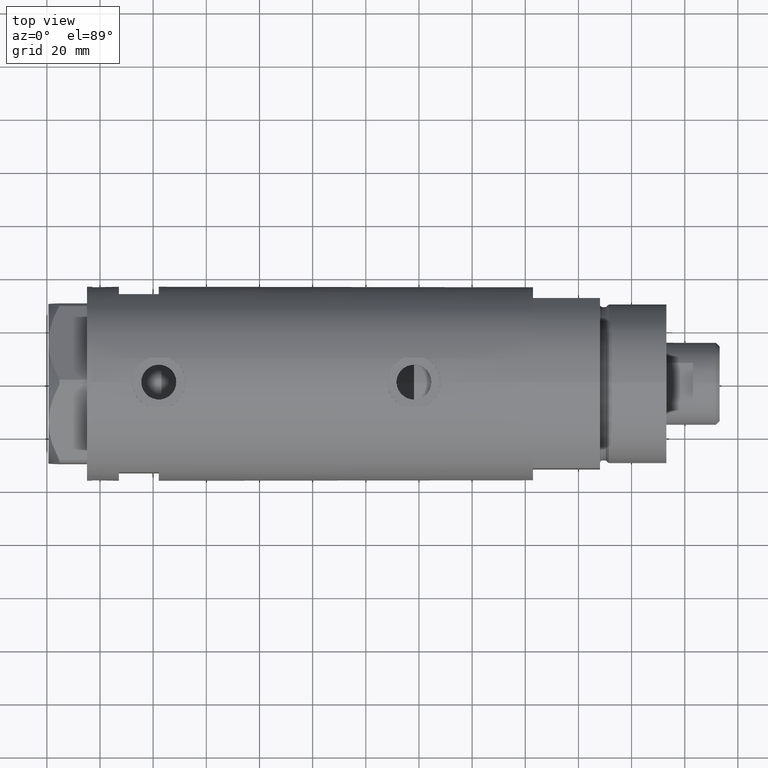
[diagram: clean part render]
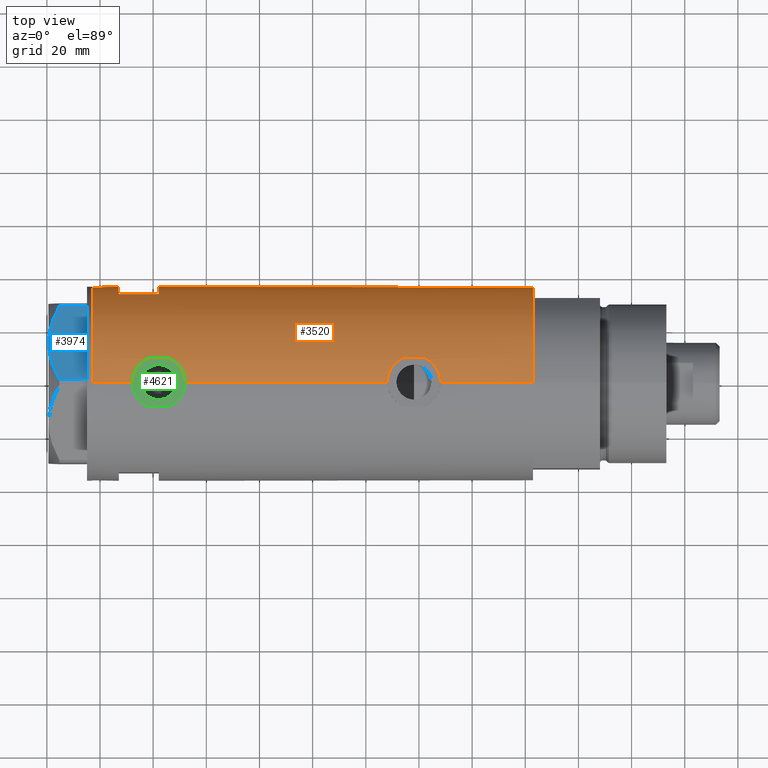
[diagram: same view with three faces highlighted in distinct colors, each labeled with its STEP entity id]
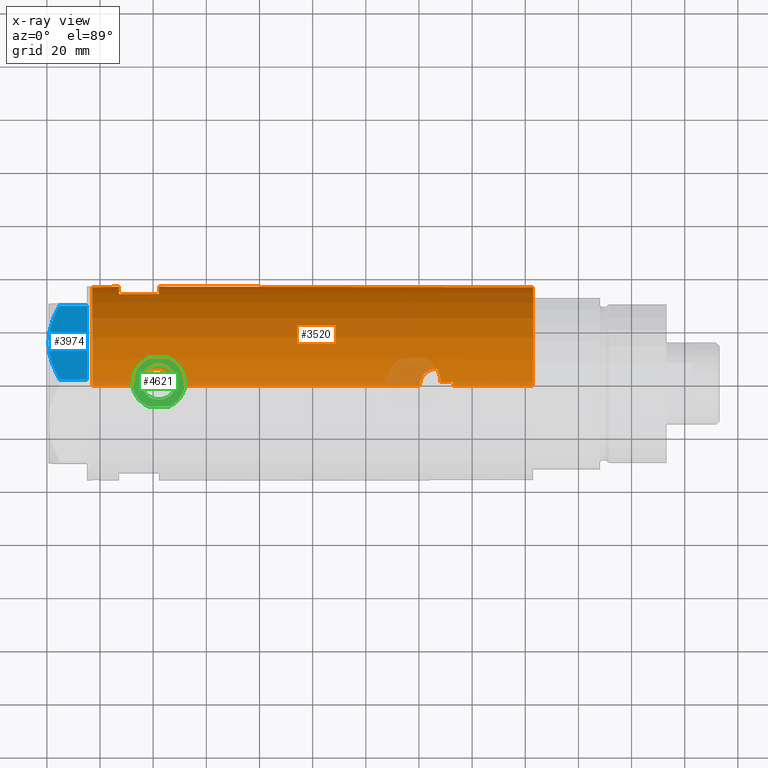
[diagram: x-ray of the same camera — body ghosted, the three highlighted faces saturated]
A machine part, top view with three faces highlighted in distinct colors.
The next image is the same camera in x-ray (body ghosted, the three faces saturated) — at least one of them is partly hidden behind the body in this view.
Their STEP definitions:

[orange] entity #3520 — the highlighted cylindrical surface (partial cylindrical patch) has radius 36.5 mm, axis along (-1, -0, 0).
#1 = CARTESIAN_POINT ( 'NONE',  ( 35.29999999999999716, 9.282241108697837362, -41.82021504754764862 ) ) ;
#7 = VERTEX_POINT ( 'NONE', #2099 ) ;
#8 = CARTESIAN_POINT ( 'NONE',  ( 36.50000000000000000, 4.344611676915099379E-19, -28.10000000000000142 ) ) ;
#24 = VECTOR ( 'NONE', #3632, 1000.000000000000000 ) ;
#33 = DIRECTION ( 'NONE',  ( 0.000000000000000000, 0.000000000000000000, 1.000000000000000000 ) ) ;
#34 = CARTESIAN_POINT ( 'NONE',  ( -36.50000000000001421, 0.4083036190459299886, 52.65000000000002700 ) ) ;
#40 = ORIENTED_EDGE ( 'NONE', *, *, #1723, .T. ) ;
#58 = CARTESIAN_POINT ( 'NONE',  ( 36.29611582693038940, 3.878758190381168092, -28.86955010900449992 ) ) ;
#80 = CARTESIAN_POINT ( 'NONE',  ( 36.40008489419980720, 2.709263960908029123, -28.47081895403607632 ) ) ;
#141 = CARTESIAN_POINT ( 'NONE',  ( 36.49999999999999289, 1.005842003469123558, 47.89999999999999147 ) ) ;
#185 = CARTESIAN_POINT ( 'NONE',  ( -36.01524716445113228, 5.931039972055507370, 56.88669268135342350 ) ) ;
#187 = EDGE_CURVE ( 'NONE', #584, #7, #2796, .T. ) ;
#205 = CARTESIAN_POINT ( 'NONE',  ( 14.49137674618942739, 33.50000000000000000, 72.89999999999999147 ) ) ;
#213 = VERTEX_POINT ( 'NONE', #449 ) ;
#226 = LINE ( 'NONE', #1335, #3022 ) ;
#231 = CARTESIAN_POINT ( 'NONE',  ( 36.34264078466109993, 3.418717136061407480, 67.31049034040752588 ) ) ;
#233 = CARTESIAN_POINT ( 'NONE',  ( -36.11199073531170001, 5.309184630646985426, 62.20412840766834250 ) ) ;
#247 = CARTESIAN_POINT ( 'NONE',  ( -35.96088929326157313, 6.250155299092693184, -47.00610494763245129 ) ) ;
#248 = CARTESIAN_POINT ( 'NONE',  ( 35.52347503888660185, 8.410566959990466884, -32.60046032740658006 ) ) ;
#276 = CARTESIAN_POINT ( 'NONE',  ( 36.49999999999999289, 1.005842003469123558, -48.09999999999999432 ) ) ;
#294 = ORIENTED_EDGE ( 'NONE', *, *, #4277, .F. ) ;
#310 = CARTESIAN_POINT ( 'NONE',  ( 35.72794581931695035, 7.469526493268208611, -31.44660203271737586 ) ) ;
#326 = EDGE_CURVE ( 'NONE', #1058, #4700, #1194, .T. ) ;
#345 = CARTESIAN_POINT ( 'NONE',  ( 35.34894515018993388, 9.096104616284849342, 53.71535916533458987 ) ) ;
#354 = CARTESIAN_POINT ( 'NONE',  ( 35.93456089024233790, 6.410413305453381838, -45.79085963204146026 ) ) ;
#362 = CARTESIAN_POINT ( 'NONE',  ( 36.00145998247696610, 6.026272765084661920, -30.10449611787613478 ) ) ;
#377 = CARTESIAN_POINT ( 'NONE',  ( 35.40502660484482789, 8.876998817796915020, -42.73098724071236632 ) ) ;
#390 = CARTESIAN_POINT ( 'NONE',  ( 36.18948008481302026, 4.772042575486204363, 49.09822368756843503 ) ) ;
#437 = CARTESIAN_POINT ( 'NONE',  ( 35.93435287561198521, 6.411571491280768420, -30.41011355077158029 ) ) ;
#449 = CARTESIAN_POINT ( 'NONE',  ( -36.50000000000000000, 4.469960816887838430E-15, -82.90000000000000568 ) ) ;
#458 = DIRECTION ( 'NONE',  ( -0.000000000000000000, -0.000000000000000000, -1.000000000000000000 ) ) ;
#500 = CARTESIAN_POINT ( 'NONE',  ( 36.50000000000000000, 0.000000000000000000, 47.89999999999999858 ) ) ;
#509 = CARTESIAN_POINT ( 'NONE',  ( 36.48988646280793802, 0.9921857666168150125, 67.86328115134426753 ) ) ;
#516 = ORIENTED_EDGE ( 'NONE', *, *, #2064, .F. ) ;
#523 = LINE ( 'NONE', #2018, #1889 ) ;
#530 = CARTESIAN_POINT ( 'NONE',  ( 36.48988646280794512, 0.9921857666168116818, -28.13671884865573602 ) ) ;
#543 = LINE ( 'NONE', #4229, #4044 ) ;
#550 = CARTESIAN_POINT ( 'NONE',  ( -36.03936508729894683, 5.782103729777503531, 61.29870532603795397 ) ) ;
#575 = AXIS2_PLACEMENT_3D ( 'NONE', #2249, #458, #2698 ) ;
#581 = CARTESIAN_POINT ( 'NONE',  ( -35.99700617875953412, 6.038972911021577517, 60.52333185798319448 ) ) ;
#584 = VERTEX_POINT ( 'NONE', #2455 ) ;
#601 = CARTESIAN_POINT ( 'NONE',  ( 35.72794581931695745, 7.469526493268204170, 64.55339796728263480 ) ) ;
#605 = EDGE_CURVE ( 'NONE', #213, #3076, #523, .T. ) ;
#606 = EDGE_CURVE ( 'NONE', #1258, #3686, #1018, .T. ) ;
#617 = VERTEX_POINT ( 'NONE', #3473 ) ;
#628 = CARTESIAN_POINT ( 'NONE',  ( -36.19624103943463211, 4.708090268046854376, -42.46938778553861482 ) ) ;
#635 = CARTESIAN_POINT ( 'NONE',  ( 36.36225053217121683, 3.177096004138048713, 48.41483975524019456 ) ) ;
#670 = CARTESIAN_POINT ( 'NONE',  ( -35.96793274302673638, 6.210029014836893069, -45.78305762320682248 ) ) ;
#674 = CARTESIAN_POINT ( 'NONE',  ( 36.50000000000000000, 0.000000000000000000, -82.90000000000000568 ) ) ;
#679 = ORIENTED_EDGE ( 'NONE', *, *, #605, .T. ) ;
#681 = CARTESIAN_POINT ( 'NONE',  ( -36.11206433103227909, 5.308658295084034862, 55.59515351959023377 ) ) ;
#733 = CARTESIAN_POINT ( 'NONE',  ( -36.16083474549355259, 4.969527450313370842, 55.08794680877250016 ) ) ;
#776 = CARTESIAN_POINT ( 'NONE',  ( 36.29420020483470921, 3.877527130731371230, 48.67901025599706344 ) ) ;
#788 = FACE_OUTER_BOUND ( 'NONE', #2843, .T. ) ;
#804 = VECTOR ( 'NONE', #2118, 1000.000000000000000 ) ;
#819 = CARTESIAN_POINT ( 'NONE',  ( 0.000000000000000000, 0.000000000000000000, 82.90000000000000568 ) ) ;
#864 = ORIENTED_EDGE ( 'NONE', *, *, #2869, .T. ) ;
#874 = AXIS2_PLACEMENT_3D ( 'NONE', #4142, #3073, #908 ) ;
#901 = ORIENTED_EDGE ( 'NONE', *, *, #2983, .F. ) ;
#908 = DIRECTION ( 'NONE',  ( 0.000000000000000000, 1.000000000000000000, -4.562560375171875891E-15 ) ) ;
#926 = CARTESIAN_POINT ( 'NONE',  ( 35.39804469700246869, 8.909380959553008239, 62.55053164482843187 ) ) ;
#931 = CARTESIAN_POINT ( 'NONE',  ( -36.46462099658055678, 1.618684470865503489, 64.94024397024845996 ) ) ;
#939 = CARTESIAN_POINT ( 'NONE',  ( -36.16083474549354548, 4.969527450313382388, -50.41205319122751405 ) ) ;
#952 = CARTESIAN_POINT ( 'NONE',  ( -36.49297130294515057, 0.8204796224394267368, 65.10931692217734224 ) ) ;
#979 = CARTESIAN_POINT ( 'NONE',  ( 36.18937351723702989, 4.773052864917642246, 66.70135993118843487 ) ) ;
#1008 = VERTEX_POINT ( 'NONE', #205 ) ;
#1014 = CARTESIAN_POINT ( 'NONE',  ( -36.47290054070997911, 1.420408912806971014, 64.98986981660013384 ) ) ;
#1016 = EDGE_CURVE ( 'NONE', #1429, #4700, #226, .T. ) ;
#1018 = LINE ( 'NONE', #3927, #804 ) ;
#1032 = CARTESIAN_POINT ( 'NONE',  ( 35.79715675463676661, 7.130463293899343746, -31.08444415894004109 ) ) ;
#1037 = CARTESIAN_POINT ( 'NONE',  ( -36.11199073531169290, 5.309184630646996972, -43.29587159233165039 ) ) ;
#1058 = VERTEX_POINT ( 'NONE', #4587 ) ;
#1059 = CARTESIAN_POINT ( 'NONE',  ( -36.50000000000000711, 0.4083036190459276016, -52.85000000000001563 ) ) ;
#1081 = EDGE_CURVE ( 'NONE', #617, #2923, #1478, .T. ) ;
#1086 = ORIENTED_EDGE ( 'NONE', *, *, #606, .F. ) ;
#1088 = CARTESIAN_POINT ( 'NONE',  ( -36.39522946636254375, 2.769519034821240844, 53.29336076268729272 ) ) ;
#1097 = EDGE_CURVE ( 'NONE', #3580, #1058, #4371, .T. ) ;
#1115 = CARTESIAN_POINT ( 'NONE',  ( 36.34070350304396868, 3.414301401755547083, -47.50236217375907444 ) ) ;
#1118 = CARTESIAN_POINT ( 'NONE',  ( -14.49137674618942739, 33.50000000000000000, 72.89999999999999147 ) ) ;
#1122 = CARTESIAN_POINT ( 'NONE',  ( -36.06690560274405044, 5.606949625760679901, -49.36885923958933375 ) ) ;
#1146 = CARTESIAN_POINT ( 'NONE',  ( 35.52737867031126484, 8.373910777960910323, -43.58860356717065798 ) ) ;
#1194 = B_SPLINE_CURVE_WITH_KNOTS ( 'NONE', 3,
 ( #3230, #276, #2083, #4684, #1115, #4653, #2572, #3680, #3699, #4048, #354, #3317, #3960, #2816, #1146, #377, #3535, #1 ),
 .UNSPECIFIED., .F., .F.,
 ( 4, 2, 2, 2, 2, 2, 2, 2, 4 ),
 ( 6.505213034913026604E-19, 0.002973648994175712851, 0.003717061242719640196, 0.004460473491263567541, 0.005947297988351423099, 0.007434122485439277790, 0.008920946982527131613, 0.01040777147961498630, 0.01189459597670284099 ),
 .UNSPECIFIED. ) ;
#1213 = CARTESIAN_POINT ( 'NONE',  ( -36.01524716445113938, 5.931039972055519804, -48.61330731864658361 ) ) ;
#1214 = CARTESIAN_POINT ( 'NONE',  ( 36.41717583764485511, 2.469534783404757405, -28.40651988824328456 ) ) ;
#1222 = EDGE_CURVE ( 'NONE', #3233, #2046, #2630, .T. ) ;
#1245 = CARTESIAN_POINT ( 'NONE',  ( -36.44628644024910358, 2.015372769639941275, 52.96971871986416858 ) ) ;
#1258 = VERTEX_POINT ( 'NONE', #8 ) ;
#1278 = CARTESIAN_POINT ( 'NONE',  ( 36.50000000000000000, 0.4961820988516186803, -28.10000000000000142 ) ) ;
#1279 = AXIS2_PLACEMENT_3D ( 'NONE', #4114, #3338, #2625 ) ;
#1299 = CARTESIAN_POINT ( 'NONE',  ( -36.30200038006935159, 3.811959488093736415, 63.86972104836005570 ) ) ;
#1335 = CARTESIAN_POINT ( 'NONE',  ( 35.29999999999999716, 9.282241108697837362, -82.90000000000000568 ) ) ;
#1365 = VECTOR ( 'NONE', #4197, 1000.000000000000000 ) ;
#1372 = DIRECTION ( 'NONE',  ( 0.000000000000000000, 0.000000000000000000, 1.000000000000000000 ) ) ;
#1375 = CARTESIAN_POINT ( 'NONE',  ( 35.40502660484482789, 8.876998817796915020, 53.26901275928763368 ) ) ;
#1378 = ORIENTED_EDGE ( 'NONE', *, *, #3848, .T. ) ;
#1397 = CARTESIAN_POINT ( 'NONE',  ( -36.26643311080165688, 4.132772529026629726, 63.60619405269881099 ) ) ;
#1407 = EDGE_LOOP ( 'NONE', ( #3442, #3275, #901, #294 ) ) ;
#1416 = DIRECTION ( 'NONE',  ( 1.000000000000000000, 0.000000000000000000, 0.000000000000000000 ) ) ;
#1420 = DIRECTION ( 'NONE',  ( 0.000000000000000000, 0.000000000000000000, 1.000000000000000000 ) ) ;
#1429 = VERTEX_POINT ( 'NONE', #3933 ) ;
#1446 = B_SPLINE_CURVE_WITH_KNOTS ( 'NONE', 3,
 ( #3228, #4344, #248, #4724, #310, #1032, #4493, #437, #362, #1500, #1913, #58, #1935, #80, #1214, #1974, #1721, #530, #1278, #3875 ),
 .UNSPECIFIED., .F., .F.,
 ( 4, 2, 2, 2, 2, 2, 2, 2, 2, 4 ),
 ( 0.000000000000000000, 0.002977391289382820029, 0.003721739111728531758, 0.004466086934074251294, 0.005954782578765692100, 0.007443478223457132038, 0.008932173868148571977, 0.009676521690494288910, 0.01042086951284000758, 0.01190956515753144491 ),
 .UNSPECIFIED. ) ;
#1464 = CARTESIAN_POINT ( 'NONE',  ( -35.96094343308264740, 6.249843792257639308, -46.18912889655430121 ) ) ;
#1478 = LINE ( 'NONE', #674, #24 ) ;
#1490 = ORIENTED_EDGE ( 'NONE', *, *, #3045, .F. ) ;
#1500 = CARTESIAN_POINT ( 'NONE',  ( 36.12877841835538106, 5.208882251161926824, -29.54946835209708667 ) ) ;
#1509 = ORIENTED_EDGE ( 'NONE', *, *, #1222, .T. ) ;
#1528 = CARTESIAN_POINT ( 'NONE',  ( 36.44688397185922213, 1.983417953489136965, 67.70449957648254724 ) ) ;
#1544 = CARTESIAN_POINT ( 'NONE',  ( -35.99530513653993324, 6.049346314076213815, -48.22332583035833409 ) ) ;
#1549 = CARTESIAN_POINT ( 'NONE',  ( 36.49999999999999289, 0.4961820988516169595, 67.89999999999997726 ) ) ;
#1555 = CARTESIAN_POINT ( 'NONE',  ( -36.46462099658057099, 1.618684470865508596, -40.55975602975155425 ) ) ;
#1574 = CARTESIAN_POINT ( 'NONE',  ( -36.06675137892952421, 5.607935153446982568, -43.83318173991241906 ) ) ;
#1637 = CARTESIAN_POINT ( 'NONE',  ( 36.45853166336078743, 1.985123042546143690, 48.04837329582261418 ) ) ;
#1641 = CARTESIAN_POINT ( 'NONE',  ( -36.50000000000000000, 4.469960493369248271E-15, 52.65000000000001279 ) ) ;
#1648 = DIRECTION ( 'NONE',  ( -0.000000000000000000, -0.000000000000000000, -1.000000000000000000 ) ) ;
#1678 = CARTESIAN_POINT ( 'NONE',  ( 35.79715675463678082, 7.130463293899336641, 64.91555584105995536 ) ) ;
#1680 = CARTESIAN_POINT ( 'NONE',  ( -36.39638105034455151, 2.774378062517180332, -40.98456667300897749 ) ) ;
#1686 = CARTESIAN_POINT ( 'NONE',  ( -36.06690560274405044, 5.606949625760669242, 56.13114076041065914 ) ) ;
#1721 = CARTESIAN_POINT ( 'NONE',  ( 36.45954139109321090, 1.735915671103594571, -28.24863218852990698 ) ) ;
#1723 = EDGE_CURVE ( 'NONE', #3983, #2407, #3930, .T. ) ;
#1731 = LINE ( 'NONE', #4274, #1365 ) ;
#1734 = CARTESIAN_POINT ( 'NONE',  ( 36.12877841835537396, 5.208882251161923271, 66.45053164790293465 ) ) ;
#1757 = DIRECTION ( 'NONE',  ( 0.000000000000000000, 0.000000000000000000, 1.000000000000000000 ) ) ;
#1788 = CARTESIAN_POINT ( 'NONE',  ( -36.30181775639987762, 3.813582387016778430, 53.93163942425564983 ) ) ;
#1792 = ORIENTED_EDGE ( 'NONE', *, *, #1016, .T. ) ;
#1800 = CARTESIAN_POINT ( 'NONE',  ( 36.50000000000000000, 0.000000000000000000, -82.90000000000000568 ) ) ;
#1804 = CARTESIAN_POINT ( 'NONE',  ( -36.50000000000000000, 4.469960493366092827E-15, -52.85000000000000853 ) ) ;
#1807 = CARTESIAN_POINT ( 'NONE',  ( -36.35033317675380715, 3.306376218664574207, 53.59229280583950583 ) ) ;
#1830 = B_SPLINE_CURVE_WITH_KNOTS ( 'NONE', 3,
 ( #500, #141, #1637, #635, #4784, #776, #2456, #390, #4086, #3669, #2120, #4314, #3568, #1891, #4693, #1375, #345, #1853 ),
 .UNSPECIFIED., .F., .F.,
 ( 4, 2, 2, 2, 2, 2, 2, 2, 4 ),
 ( 6.505213034913026604E-19, 0.002973648994175712851, 0.003717061242719640196, 0.004460473491263567541, 0.005947297988351423099, 0.007434122485439277790, 0.008920946982527131613, 0.01040777147961498630, 0.01189459597670284099 ),
 .UNSPECIFIED. ) ;
#1849 = CARTESIAN_POINT ( 'NONE',  ( -36.05296344941215381, 5.695624845616832133, -49.18154856536755659 ) ) ;
#1853 = CARTESIAN_POINT ( 'NONE',  ( 35.29999999999999716, 9.282241108697837362, 54.17978495245235138 ) ) ;
#1873 = CARTESIAN_POINT ( 'NONE',  ( -36.19597718496778072, 4.710322426433902088, 54.77148389237986237 ) ) ;
#1886 = CARTESIAN_POINT ( 'NONE',  ( 35.29999999999999716, 9.282241108697837362, 54.17978495245235138 ) ) ;
#1889 = VECTOR ( 'NONE', #1372, 1000.000000000000000 ) ;
#1891 = CARTESIAN_POINT ( 'NONE',  ( 35.59366931936805400, 8.089554397885871495, 52.00072680912185774 ) ) ;
#1901 = AXIS2_PLACEMENT_3D ( 'NONE', #2563, #2588, #2213 ) ;
#1913 = CARTESIAN_POINT ( 'NONE',  ( 36.18937351723702989, 4.773052864917642246, -29.29864006881156513 ) ) ;
#1935 = CARTESIAN_POINT ( 'NONE',  ( 36.34264078466111414, 3.418717136061404815, -28.68950965959248123 ) ) ;
#1974 = CARTESIAN_POINT ( 'NONE',  ( 36.44688397185921502, 1.983417953489134744, -28.29550042351748829 ) ) ;
#1979 = CARTESIAN_POINT ( 'NONE',  ( -35.98846897517729815, 6.089479646546508640, -45.17765108453480849 ) ) ;
#2001 = CARTESIAN_POINT ( 'NONE',  ( -36.40902375114222167, 2.582415566883932811, -52.29521691469690836 ) ) ;
#2006 = EDGE_CURVE ( 'NONE', #7, #4607, #1731, .T. ) ;
#2018 = CARTESIAN_POINT ( 'NONE',  ( -36.50000000000000000, 4.469960816887838430E-15, -82.90000000000000568 ) ) ;
#2039 = CARTESIAN_POINT ( 'NONE',  ( -35.96793274302675769, 6.210029014836877970, 59.71694237679319173 ) ) ;
#2040 = VECTOR ( 'NONE', #2209, 1000.000000000000000 ) ;
#2046 = VERTEX_POINT ( 'NONE', #4300 ) ;
#2064 = EDGE_CURVE ( 'NONE', #1429, #1258, #1446, .T. ) ;
#2083 = CARTESIAN_POINT ( 'NONE',  ( 36.45853166336078743, 1.985123042546143690, -47.95162670417735740 ) ) ;
#2087 = CARTESIAN_POINT ( 'NONE',  ( 36.29611582693039651, 3.878758190381167648, 67.13044989099549298 ) ) ;
#2090 = CARTESIAN_POINT ( 'NONE',  ( -36.39638105034455862, 2.774378062517167454, 64.51543332699104383 ) ) ;
#2099 = CARTESIAN_POINT ( 'NONE',  ( -14.49137674618942917, 33.50000000000000000, 57.89999999999999147 ) ) ;
#2118 = DIRECTION ( 'NONE',  ( 0.000000000000000000, 0.000000000000000000, 1.000000000000000000 ) ) ;
#2120 = CARTESIAN_POINT ( 'NONE',  ( 35.93456089024233790, 6.410413305453381838, 50.20914036795854685 ) ) ;
#2133 = CIRCLE ( 'NONE', #2726, 36.50000000000000000 ) ;
#2136 = CARTESIAN_POINT ( 'NONE',  ( -36.49292802938586533, 0.8230716655928878023, 52.69093061246486798 ) ) ;
#2165 = CARTESIAN_POINT ( 'NONE',  ( -36.36688032967139605, 3.133094607697487266, -41.17663567362491506 ) ) ;
#2172 = CARTESIAN_POINT ( 'NONE',  ( -36.36587679577596077, 3.131448301962862057, 53.48717534426381803 ) ) ;
#2209 = DIRECTION ( 'NONE',  ( -0.000000000000000000, -0.000000000000000000, -1.000000000000000000 ) ) ;
#2212 = VECTOR ( 'NONE', #1420, 1000.000000000000000 ) ;
#2213 = DIRECTION ( 'NONE',  ( 1.000000000000000000, 0.000000000000000000, 0.000000000000000000 ) ) ;
#2234 = CARTESIAN_POINT ( 'NONE',  ( 36.41717583764487642, 2.469534783404759182, 67.59348011175673321 ) ) ;
#2249 = CARTESIAN_POINT ( 'NONE',  ( 0.000000000000000000, 0.000000000000000000, 72.89999999999999147 ) ) ;
#2263 = FACE_BOUND ( 'NONE', #1407, .T. ) ;
#2303 = DIRECTION ( 'NONE',  ( 0.000000000000000000, 0.000000000000000000, 1.000000000000000000 ) ) ;
#2364 = CARTESIAN_POINT ( 'NONE',  ( 35.29999999999999716, 9.282241108697837362, 61.62021504754764578 ) ) ;
#2395 = CARTESIAN_POINT ( 'NONE',  ( 35.93435287561198521, 6.411571491280764867, 65.58988644922843037 ) ) ;
#2400 = CARTESIAN_POINT ( 'NONE',  ( -36.43371204571226230, 2.206934156026284732, 64.75097281670994676 ) ) ;
#2407 = VERTEX_POINT ( 'NONE', #1641 ) ;
#2454 = CARTESIAN_POINT ( 'NONE',  ( -36.36688032967139605, 3.133094607697478828, 64.32336432637509915 ) ) ;
#2455 = CARTESIAN_POINT ( 'NONE',  ( 14.49137674618942917, 33.50000000000000000, 57.89999999999999147 ) ) ;
#2456 = CARTESIAN_POINT ( 'NONE',  ( 36.26917563968162739, 4.104523505324179311, 48.77784011632527239 ) ) ;
#2461 = CARTESIAN_POINT ( 'NONE',  ( -36.49297130294515057, 0.8204796224394304005, -40.39068307782265066 ) ) ;
#2542 = CARTESIAN_POINT ( 'NONE',  ( -36.46598788992681506, 1.625721481788706013, -52.64872046713838216 ) ) ;
#2545 = CARTESIAN_POINT ( 'NONE',  ( -36.40902375114222167, 2.582415566883931479, 53.20478308530312006 ) ) ;
#2563 = CARTESIAN_POINT ( 'NONE',  ( 0.000000000000000000, 0.000000000000000000, -82.90000000000000568 ) ) ;
#2572 = CARTESIAN_POINT ( 'NONE',  ( 36.26917563968162739, 4.104523505324179311, -47.22215988367477024 ) ) ;
#2588 = DIRECTION ( 'NONE',  ( 0.000000000000000000, 0.000000000000000000, 1.000000000000000000 ) ) ;
#2617 = CARTESIAN_POINT ( 'NONE',  ( -36.26695135241003953, 4.128455078791303023, 54.18962408355263705 ) ) ;
#2625 = DIRECTION ( 'NONE',  ( 1.000000000000000000, 0.000000000000000000, 0.000000000000000000 ) ) ;
#2630 = LINE ( 'NONE', #4126, #3414 ) ;
#2661 = CARTESIAN_POINT ( 'NONE',  ( -36.44504802628535600, 2.011764947064739406, -40.67906355091481174 ) ) ;
#2698 = DIRECTION ( 'NONE',  ( 1.000000000000000000, 1.776356839400250465E-15, 0.000000000000000000 ) ) ;
#2702 = EDGE_CURVE ( 'NONE', #3233, #2407, #3074, .T. ) ;
#2723 = CARTESIAN_POINT ( 'NONE',  ( 35.69321149401850590, 7.633476302278302761, 64.36463072166442601 ) ) ;
#2726 = AXIS2_PLACEMENT_3D ( 'NONE', #819, #33, #1416 ) ;
#2751 = CARTESIAN_POINT ( 'NONE',  ( -36.16126303108062956, 4.966520032693292563, 62.71641227745282521 ) ) ;
#2773 = CARTESIAN_POINT ( 'NONE',  ( 36.00145998247697321, 6.026272765084660143, 65.89550388212386167 ) ) ;
#2795 = DIRECTION ( 'NONE',  ( -0.000000000000000000, -0.000000000000000000, -1.000000000000000000 ) ) ;
#2796 = CIRCLE ( 'NONE', #874, 36.50000000000000000 ) ;
#2816 = CARTESIAN_POINT ( 'NONE',  ( 35.59366931936805400, 8.089554397885871495, -43.99927319087814936 ) ) ;
#2826 = CARTESIAN_POINT ( 'NONE',  ( -35.99530513653992614, 6.049346314076198716, 57.27667416964168012 ) ) ;
#2843 = EDGE_LOOP ( 'NONE', ( #1378, #679, #3854, #40, #3608, #1509, #1490, #4159, #4041, #864, #3719, #1086, #516, #1792, #4024, #4674 ) ) ;
#2850 = EDGE_CURVE ( 'NONE', #3983, #3076, #3618, .T. ) ;
#2869 = EDGE_CURVE ( 'NONE', #4476, #4376, #4011, .T. ) ;
#2889 = CARTESIAN_POINT ( 'NONE',  ( 35.29999999999999716, 9.282241108697837362, -82.90000000000000568 ) ) ;
#2919 = CARTESIAN_POINT ( 'NONE',  ( -35.96805604460922012, 6.209309709790239218, -47.42112758268170580 ) ) ;
#2923 = VERTEX_POINT ( 'NONE', #3449 ) ;
#2926 = CARTESIAN_POINT ( 'NONE',  ( -36.01679413914727235, 5.919813138266332153, -44.58500308952962143 ) ) ;
#2983 = EDGE_CURVE ( 'NONE', #1008, #584, #543, .T. ) ;
#3000 = EDGE_CURVE ( 'NONE', #4476, #617, #4644, .T. ) ;
#3022 = VECTOR ( 'NONE', #1648, 1000.000000000000000 ) ;
#3045 = EDGE_CURVE ( 'NONE', #2923, #2046, #2133, .T. ) ;
#3047 = CARTESIAN_POINT ( 'NONE',  ( -35.99700617875954123, 6.038972911021593504, -44.97666814201680552 ) ) ;
#3052 = CARTESIAN_POINT ( 'NONE',  ( -36.50000000000000000, 2.196845629780489385E-16, 65.15000000000000568 ) ) ;
#3073 = DIRECTION ( 'NONE',  ( 0.000000000000000000, 4.625929269271492422E-15, 1.000000000000000000 ) ) ;
#3074 = B_SPLINE_CURVE_WITH_KNOTS ( 'NONE', 3,
 ( #3595, #3950, #952, #1014, #931, #3893, #2400, #2090, #2454, #1299, #1397, #3541, #2751, #233, #4233, #3867, #550, #4692, #581, #4332, #2039, #3183, #4666, #3498, #2826, #185, #4311, #1686, #4616, #681, #733, #1873, #2617, #1788, #1807, #2172, #1088, #2545, #1245, #3276, #2136, #34, #4154 ),
 .UNSPECIFIED., .F., .F.,
 ( 4, 2, 2, 2, 2, 2, 2, 2, 1, 2, 2, 2, 2, 2, 2, 2, 2, 2, 2, 2, 2, 4 ),
 ( 2.134326792795658191E-19, 0.001223527801214134613, 0.001835291701821197691, 0.002447055602428260986, 0.003670583403642388443, 0.004894111204856515032, 0.006117639006070642489, 0.006729402906677714458, 0.007341166807284786426, 0.007952930707891856660, 0.008564694608498929496, 0.009788222409713092514, 0.01101175021092725553, 0.01223527801214141682, 0.01284704191274850180, 0.01345880581335558331, 0.01468233361456974632, 0.01590586141578391108, 0.01651762531639099432, 0.01712938921699807757, 0.01835291701821224059, 0.01957644481942640707 ),
 .UNSPECIFIED. ) ;
#3076 = VERTEX_POINT ( 'NONE', #4323 ) ;
#3082 = CARTESIAN_POINT ( 'NONE',  ( -36.50000000000000000, 0.4137727629436737109, -40.35000000000000142 ) ) ;
#3083 = CARTESIAN_POINT ( 'NONE',  ( -36.44628644024910358, 2.015372769639944828, -52.53028128013585984 ) ) ;
#3098 = VECTOR ( 'NONE', #1757, 1000.000000000000000 ) ;
#3110 = CARTESIAN_POINT ( 'NONE',  ( -36.26695135241004664, 4.128455078791307464, -51.31037591644739848 ) ) ;
#3160 = CARTESIAN_POINT ( 'NONE',  ( -36.50000000000000000, 4.469960816887838430E-15, -82.90000000000000568 ) ) ;
#3183 = CARTESIAN_POINT ( 'NONE',  ( -35.96094343308265451, 6.249843792257625097, 59.31087110344572011 ) ) ;
#3228 = CARTESIAN_POINT ( 'NONE',  ( 35.29999999999999716, 9.282241108697837362, -34.37978495245235422 ) ) ;
#3230 = CARTESIAN_POINT ( 'NONE',  ( 36.50000000000000000, 0.000000000000000000, -48.10000000000000142 ) ) ;
#3233 = VERTEX_POINT ( 'NONE', #3052 ) ;
#3275 = ORIENTED_EDGE ( 'NONE', *, *, #187, .F. ) ;
#3276 = CARTESIAN_POINT ( 'NONE',  ( -36.46598788992681506, 1.625721481788708456, 52.85127953286164626 ) ) ;
#3317 = CARTESIAN_POINT ( 'NONE',  ( 35.79766710091576698, 7.135341284989892507, -45.12350520560902822 ) ) ;
#3318 = CYLINDRICAL_SURFACE ( 'NONE', #1279, 36.50000000000000000 ) ;
#3338 = DIRECTION ( 'NONE',  ( 0.000000000000000000, 0.000000000000000000, 1.000000000000000000 ) ) ;
#3359 = CIRCLE ( 'NONE', #575, 36.50000000000000000 ) ;
#3414 = VECTOR ( 'NONE', #2303, 1000.000000000000000 ) ;
#3437 = CARTESIAN_POINT ( 'NONE',  ( -36.36587679577596077, 3.131448301962866054, -52.01282465573622460 ) ) ;
#3442 = ORIENTED_EDGE ( 'NONE', *, *, #2006, .F. ) ;
#3449 = CARTESIAN_POINT ( 'NONE',  ( 36.50000000000000000, 0.000000000000000000, 82.90000000000000568 ) ) ;
#3473 = CARTESIAN_POINT ( 'NONE',  ( 36.50000000000000000, 4.344604608721388599E-19, 67.90000000000000568 ) ) ;
#3478 = CARTESIAN_POINT ( 'NONE',  ( -36.19597718496778782, 4.710322426433910081, -50.72851610762017316 ) ) ;
#3498 = CARTESIAN_POINT ( 'NONE',  ( -35.96805604460922012, 6.209309709790225007, 58.07887241731829420 ) ) ;
#3520 = ADVANCED_FACE ( 'NONE', ( #2263, #788 ), #3318, .T. ) ;
#3535 = CARTESIAN_POINT ( 'NONE',  ( 35.34894515018993388, 9.096104616284849342, -42.28464083466543144 ) ) ;
#3541 = CARTESIAN_POINT ( 'NONE',  ( -36.19624103943462501, 4.708090268046841942, 63.03061221446136386 ) ) ;
#3568 = CARTESIAN_POINT ( 'NONE',  ( 35.72860827204725354, 7.471059959301286746, 51.23474849525592134 ) ) ;
#3580 = VERTEX_POINT ( 'NONE', #4486 ) ;
#3595 = CARTESIAN_POINT ( 'NONE',  ( -36.50000000000000000, 2.196845629780489385E-16, 65.15000000000000568 ) ) ;
#3608 = ORIENTED_EDGE ( 'NONE', *, *, #2702, .F. ) ;
#3618 = B_SPLINE_CURVE_WITH_KNOTS ( 'NONE', 3,
 ( #4557, #3082, #2461, #4675, #1555, #2661, #4202, #1680, #2165, #4349, #4377, #628, #4690, #1037, #3637, #1574, #4103, #2926, #3047, #1979, #670, #1464, #247, #2919, #1544, #1213, #1849, #1122, #4442, #4122, #939, #3478, #3110, #3798, #4580, #3437, #3828, #2001, #3083, #2542, #3636, #1059, #1804 ),
 .UNSPECIFIED., .F., .F.,
 ( 4, 2, 2, 2, 2, 2, 2, 2, 1, 2, 2, 2, 2, 2, 2, 2, 2, 2, 2, 2, 2, 4 ),
 ( 7.251201204191552072E-19, 0.001223527801214152827, 0.001835291701821226964, 0.002447055602428301752, 0.003670583403642443086, 0.004894111204856584421, 0.006117639006070725756, 0.006729402906677795122, 0.007341166807284864489, 0.007952930707891932988, 0.008564694608499004089, 0.009788222409713161903, 0.01101175021092732145, 0.01223527801214148100, 0.01284704191274855904, 0.01345880581335564055, 0.01468233361456980184, 0.01590586141578396312, 0.01651762531639104289, 0.01712938921699812267, 0.01835291701821228222, 0.01957644481942644524 ),
 .UNSPECIFIED. ) ;
#3632 = DIRECTION ( 'NONE',  ( 0.000000000000000000, 0.000000000000000000, 1.000000000000000000 ) ) ;
#3636 = CARTESIAN_POINT ( 'NONE',  ( -36.49292802938587243, 0.8230716655928884684, -52.80906938753516044 ) ) ;
#3637 = CARTESIAN_POINT ( 'NONE',  ( -36.09617453667819831, 5.415318599347969553, -43.47293357327087193 ) ) ;
#3657 = CIRCLE ( 'NONE', #1901, 36.50000000000000000 ) ;
#3669 = CARTESIAN_POINT ( 'NONE',  ( 36.00287854058830561, 6.017835360303004144, 49.89811882818275990 ) ) ;
#3680 = CARTESIAN_POINT ( 'NONE',  ( 36.18948008481302026, 4.772042575486204363, -46.90177631243157919 ) ) ;
#3686 = VERTEX_POINT ( 'NONE', #4553 ) ;
#3699 = CARTESIAN_POINT ( 'NONE',  ( 36.13018480315371761, 5.199168368309162958, -46.65646498208050730 ) ) ;
#3719 = ORIENTED_EDGE ( 'NONE', *, *, #3783, .F. ) ;
#3783 = EDGE_CURVE ( 'NONE', #3686, #4376, #1830, .T. ) ;
#3798 = CARTESIAN_POINT ( 'NONE',  ( -36.30181775639988473, 3.813582387016784203, -51.56836057574439280 ) ) ;
#3828 = CARTESIAN_POINT ( 'NONE',  ( -36.39522946636255085, 2.769519034821246617, -52.20663923731272860 ) ) ;
#3848 = EDGE_CURVE ( 'NONE', #3580, #213, #3657, .T. ) ;
#3854 = ORIENTED_EDGE ( 'NONE', *, *, #2850, .F. ) ;
#3867 = CARTESIAN_POINT ( 'NONE',  ( -36.06675137892952421, 5.607935153446965693, 61.66681826008759515 ) ) ;
#3875 = CARTESIAN_POINT ( 'NONE',  ( 36.50000000000000000, 4.344611676915099379E-19, -28.10000000000000142 ) ) ;
#3893 = CARTESIAN_POINT ( 'NONE',  ( -36.44504802628534890, 2.011764947064734077, 64.82093644908518115 ) ) ;
#3917 = CARTESIAN_POINT ( 'NONE',  ( 35.29999999999999716, 9.282241108697837362, 61.62021504754764578 ) ) ;
#3927 = CARTESIAN_POINT ( 'NONE',  ( 36.50000000000000000, 0.000000000000000000, -82.90000000000000568 ) ) ;
#3930 = LINE ( 'NONE', #3160, #2212 ) ;
#3933 = CARTESIAN_POINT ( 'NONE',  ( 35.29999999999999716, 9.282241108697837362, -34.37978495245235422 ) ) ;
#3950 = CARTESIAN_POINT ( 'NONE',  ( -36.50000000000000000, 0.4137727629436733778, 65.15000000000000568 ) ) ;
#3960 = CARTESIAN_POINT ( 'NONE',  ( 35.72860827204725354, 7.471059959301286746, -44.76525150474409998 ) ) ;
#3983 = VERTEX_POINT ( 'NONE', #4474 ) ;
#4011 = LINE ( 'NONE', #2889, #2040 ) ;
#4024 = ORIENTED_EDGE ( 'NONE', *, *, #326, .F. ) ;
#4041 = ORIENTED_EDGE ( 'NONE', *, *, #3000, .F. ) ;
#4044 = VECTOR ( 'NONE', #2795, 1000.000000000000000 ) ;
#4048 = CARTESIAN_POINT ( 'NONE',  ( 36.00287854058830561, 6.017835360303004144, -46.10188117181726142 ) ) ;
#4086 = CARTESIAN_POINT ( 'NONE',  ( 36.13018480315371761, 5.199168368309162958, 49.34353501791949981 ) ) ;
#4103 = CARTESIAN_POINT ( 'NONE',  ( -36.03936508729894683, 5.782103729777510637, -44.20129467396203893 ) ) ;
#4114 = CARTESIAN_POINT ( 'NONE',  ( 0.000000000000000000, 0.000000000000000000, -82.90000000000000568 ) ) ;
#4122 = CARTESIAN_POINT ( 'NONE',  ( -36.11206433103227198, 5.308658295084047296, -49.90484648040978755 ) ) ;
#4126 = CARTESIAN_POINT ( 'NONE',  ( -36.50000000000000000, 4.469960816887838430E-15, -82.90000000000000568 ) ) ;
#4129 = CARTESIAN_POINT ( 'NONE',  ( 36.50000000000000000, 4.344604608721388599E-19, 67.90000000000000568 ) ) ;
#4142 = CARTESIAN_POINT ( 'NONE',  ( 0.000000000000000000, 0.000000000000000000, 57.90000000000014779 ) ) ;
#4154 = CARTESIAN_POINT ( 'NONE',  ( -36.50000000000000000, 4.469960493369248271E-15, 52.65000000000001279 ) ) ;
#4159 = ORIENTED_EDGE ( 'NONE', *, *, #1081, .F. ) ;
#4197 = DIRECTION ( 'NONE',  ( 0.000000000000000000, 0.000000000000000000, 1.000000000000000000 ) ) ;
#4200 = CARTESIAN_POINT ( 'NONE',  ( 35.83170458557579963, 6.955065627744201784, 65.08941671912468507 ) ) ;
#4202 = CARTESIAN_POINT ( 'NONE',  ( -36.43371204571226940, 2.206934156026296723, -40.74902718329001772 ) ) ;
#4229 = CARTESIAN_POINT ( 'NONE',  ( 14.49137674618942739, 33.50000000000000000, -82.90000000000000568 ) ) ;
#4233 = CARTESIAN_POINT ( 'NONE',  ( -36.09617453667821962, 5.415318599347956230, 62.02706642672912807 ) ) ;
#4274 = CARTESIAN_POINT ( 'NONE',  ( -14.49137674618942739, 33.50000000000000000, -82.90000000000000568 ) ) ;
#4277 = EDGE_CURVE ( 'NONE', #4607, #1008, #3359, .T. ) ;
#4300 = CARTESIAN_POINT ( 'NONE',  ( -36.50000000000000000, 4.469960816887838430E-15, 82.90000000000000568 ) ) ;
#4311 = CARTESIAN_POINT ( 'NONE',  ( -36.05296344941216091, 5.695624845616822363, 56.31845143463244341 ) ) ;
#4314 = CARTESIAN_POINT ( 'NONE',  ( 35.79766710091576698, 7.135341284989892507, 50.87649479439096467 ) ) ;
#4323 = CARTESIAN_POINT ( 'NONE',  ( -36.50000000000000000, 4.469960493366092827E-15, -52.85000000000000853 ) ) ;
#4332 = CARTESIAN_POINT ( 'NONE',  ( -35.98846897517730525, 6.089479646546494429, 60.32234891546520572 ) ) ;
#4344 = CARTESIAN_POINT ( 'NONE',  ( 35.39804469700248291, 8.909380959553011792, -33.44946835517156103 ) ) ;
#4349 = CARTESIAN_POINT ( 'NONE',  ( -36.30200038006934449, 3.811959488093747961, -41.63027895163993009 ) ) ;
#4371 = LINE ( 'NONE', #1800, #3098 ) ;
#4375 = CARTESIAN_POINT ( 'NONE',  ( 36.45954139109321801, 1.735915671103596125, 67.75136781147011789 ) ) ;
#4376 = VERTEX_POINT ( 'NONE', #1886 ) ;
#4377 = CARTESIAN_POINT ( 'NONE',  ( -36.26643311080166399, 4.132772529026643049, -41.89380594730118190 ) ) ;
#4442 = CARTESIAN_POINT ( 'NONE',  ( -36.09643313249890895, 5.413601294342283765, -49.73007773391854869 ) ) ;
#4474 = CARTESIAN_POINT ( 'NONE',  ( -36.50000000000000000, 7.463603853851042361E-16, -40.34999999999999432 ) ) ;
#4476 = VERTEX_POINT ( 'NONE', #2364 ) ;
#4486 = CARTESIAN_POINT ( 'NONE',  ( 36.50000000000000000, 0.000000000000000000, -82.90000000000000568 ) ) ;
#4493 = CARTESIAN_POINT ( 'NONE',  ( 35.83170458557578542, 6.955065627744200007, -30.91058328087535401 ) ) ;
#4507 = CARTESIAN_POINT ( 'NONE',  ( 35.29999999999999716, 9.282241108697837362, -41.82021504754764862 ) ) ;
#4553 = CARTESIAN_POINT ( 'NONE',  ( 36.50000000000000000, 0.000000000000000000, 47.89999999999999858 ) ) ;
#4557 = CARTESIAN_POINT ( 'NONE',  ( -36.50000000000000000, 7.463603853851042361E-16, -40.34999999999999432 ) ) ;
#4567 = CARTESIAN_POINT ( 'NONE',  ( 35.52347503888662317, 8.410566959990465108, 63.39953967259342704 ) ) ;
#4580 = CARTESIAN_POINT ( 'NONE',  ( -36.35033317675381426, 3.306376218664579536, -51.90770719416052970 ) ) ;
#4587 = CARTESIAN_POINT ( 'NONE',  ( 36.50000000000000000, 0.000000000000000000, -48.10000000000000142 ) ) ;
#4607 = VERTEX_POINT ( 'NONE', #1118 ) ;
#4616 = CARTESIAN_POINT ( 'NONE',  ( -36.09643313249889474, 5.413601294342269554, 55.76992226608147973 ) ) ;
#4644 = B_SPLINE_CURVE_WITH_KNOTS ( 'NONE', 3,
 ( #3917, #926, #4567, #2723, #601, #1678, #4200, #2395, #2773, #1734, #979, #2087, #231, #4759, #2234, #1528, #4375, #509, #1549, #4129 ),
 .UNSPECIFIED., .F., .F.,
 ( 4, 2, 2, 2, 2, 2, 2, 2, 2, 4 ),
 ( 0.000000000000000000, 0.002977391289382842147, 0.003721739111728546070, 0.004466086934074248692, 0.005954782578765684294, 0.007443478223457119895, 0.008932173868148556364, 0.009676521690494280237, 0.01042086951284000584, 0.01190956515753144838 ),
 .UNSPECIFIED. ) ;
#4653 = CARTESIAN_POINT ( 'NONE',  ( 36.29420020483470921, 3.877527130731371230, -47.32098974400295077 ) ) ;
#4666 = CARTESIAN_POINT ( 'NONE',  ( -35.96088929326158734, 6.250155299092678085, 58.49389505236757003 ) ) ;
#4674 = ORIENTED_EDGE ( 'NONE', *, *, #1097, .F. ) ;
#4675 = CARTESIAN_POINT ( 'NONE',  ( -36.47290054070997911, 1.420408912806975898, -40.51013018339984484 ) ) ;
#4684 = CARTESIAN_POINT ( 'NONE',  ( 36.36225053217121683, 3.177096004138048713, -47.58516024475981965 ) ) ;
#4690 = CARTESIAN_POINT ( 'NONE',  ( -36.16126303108063667, 4.966520032693304998, -42.78358772254716058 ) ) ;
#4692 = CARTESIAN_POINT ( 'NONE',  ( -36.01679413914727235, 5.919813138266318830, 60.91499691047037146 ) ) ;
#4693 = CARTESIAN_POINT ( 'NONE',  ( 35.52737867031126484, 8.373910777960910323, 52.41139643282934202 ) ) ;
#4700 = VERTEX_POINT ( 'NONE', #4507 ) ;
#4724 = CARTESIAN_POINT ( 'NONE',  ( 35.69321149401852011, 7.633476302278306314, -31.63536927833558110 ) ) ;
#4759 = CARTESIAN_POINT ( 'NONE',  ( 36.40008489419981430, 2.709263960908035784, 67.52918104596393789 ) ) ;
#4784 = CARTESIAN_POINT ( 'NONE',  ( 36.34070350304396868, 3.414301401755547083, 48.49763782624093267 ) ) ;

[blue] entity #3974 — the highlighted planar face has unit normal (-0, -0.5, -0.866).
#2 = CARTESIAN_POINT ( 'NONE',  ( 3.175372020745254709, -32.80771426042306160, 11.61522964162834803 ) ) ;
#32 = VECTOR ( 'NONE', #1473, 1000.000000000000000 ) ;
#283 = DIRECTION ( 'NONE',  ( 0.000000000000000000, 0.000000000000000000, -1.000000000000000000 ) ) ;
#383 = EDGE_CURVE ( 'NONE', #4221, #1759, #2353, .T. ) ;
#408 = AXIS2_PLACEMENT_3D ( 'NONE', #1941, #3064, #1196 ) ;
#430 = CARTESIAN_POINT ( 'NONE',  ( 8.929227268745744794, -29.48572438411182262, 13.71922620632299861 ) ) ;
#767 = LINE ( 'NONE', #1906, #32 ) ;
#1100 = CARTESIAN_POINT ( 'NONE',  ( 17.43031680809873762, -24.57761805016126644, 14.50000000000000711 ) ) ;
#1124 = EDGE_CURVE ( 'NONE', #3864, #1759, #3818, .T. ) ;
#1166 = CARTESIAN_POINT ( 'NONE',  ( 0.9699484522385750651, -34.08101615137752560, 0.000000000000000000 ) ) ;
#1196 = DIRECTION ( 'NONE',  ( -0.8660254037844389297, -0.4999999999999996114, 0.000000000000000000 ) ) ;
#1358 = VECTOR ( 'NONE', #283, 1000.000000000000000 ) ;
#1434 = CARTESIAN_POINT ( 'NONE',  ( 26.80734602959450541, -19.16378770493171402, 11.56973717813738212 ) ) ;
#1473 = DIRECTION ( 'NONE',  ( 0.8660254037844389297, 0.4999999999999996114, 0.000000000000000000 ) ) ;
#1498 = VERTEX_POINT ( 'NONE', #1166 ) ;
#1501 = EDGE_CURVE ( 'NONE', #1498, #4221, #767, .T. ) ;
#1520 = CARTESIAN_POINT ( 'NONE',  ( 14.38812268849981457, -26.33402964403881086, 14.50000000000000533 ) ) ;
#1564 = CARTESIAN_POINT ( 'NONE',  ( 10.11505054612624477, -28.80108899570488035, 14.00566141361761296 ) ) ;
#1590 = CARTESIAN_POINT ( 'NONE',  ( 29.03005154776141694, -17.88050807568878042, 14.50000000000000000 ) ) ;
#1596 = ORIENTED_EDGE ( 'NONE', *, *, #1124, .F. ) ;
#1629 = FACE_OUTER_BOUND ( 'NONE', #4408, .T. ) ;
#1759 = VERTEX_POINT ( 'NONE', #2853 ) ;
#1906 = CARTESIAN_POINT ( 'NONE',  ( -5.841958412462644145E-15, -34.64101615137753498, 0.000000000000000000 ) ) ;
#1941 = CARTESIAN_POINT ( 'NONE',  ( -5.841958412462644145E-15, -34.64101615137753498, 14.50000000000000000 ) ) ;
#2110 = ORIENTED_EDGE ( 'NONE', *, *, #1501, .T. ) ;
#2194 = ORIENTED_EDGE ( 'NONE', *, *, #3164, .T. ) ;
#2204 = CARTESIAN_POINT ( 'NONE',  ( 19.82219921729533141, -23.19666409734169221, 14.10092492974135503 ) ) ;
#2268 = ORIENTED_EDGE ( 'NONE', *, *, #3496, .F. ) ;
#2353 = LINE ( 'NONE', #1590, #3722 ) ;
#2374 = LINE ( 'NONE', #4329, #1358 ) ;
#2485 = CARTESIAN_POINT ( 'NONE',  ( 27.92668431253404293, -18.51753744596231854, 11.01056656432685266 ) ) ;
#2643 = CARTESIAN_POINT ( 'NONE',  ( 12.54037849421161077, -27.40082525200466179, 14.37423503257921986 ) ) ;
#2841 = CARTESIAN_POINT ( 'NONE',  ( 23.36084816446653889, -21.15362417512481130, 12.99122625442232604 ) ) ;
#2853 = CARTESIAN_POINT ( 'NONE',  ( 29.03005154776142049, -17.88050807568878042, 10.40518423703603901 ) ) ;
#2863 = CARTESIAN_POINT ( 'NONE',  ( 22.77266513462829067, -21.49321180573469547, 13.19311392138146566 ) ) ;
#2938 = CARTESIAN_POINT ( 'NONE',  ( 0.9699484522384129725, -34.08101615137761797, 10.40518423703596262 ) ) ;
#2997 = PLANE ( 'NONE',  #408 ) ;
#3064 = DIRECTION ( 'NONE',  ( -0.4999999999999996114, 0.8660254037844389297, 0.000000000000000000 ) ) ;
#3164 = EDGE_CURVE ( 'NONE', #4090, #1498, #2374, .T. ) ;
#3168 = ORIENTED_EDGE ( 'NONE', *, *, #383, .T. ) ;
#3330 = CARTESIAN_POINT ( 'NONE',  ( 14.99999999999998757, -25.98076211353316722, 14.50000000000000000 ) ) ;
#3366 = DIRECTION ( 'NONE',  ( 0.000000000000000000, 0.000000000000000000, 1.000000000000000000 ) ) ;
#3386 = CARTESIAN_POINT ( 'NONE',  ( 14.99999999999998757, -25.98076211353316722, 14.50000000000000000 ) ) ;
#3404 = CARTESIAN_POINT ( 'NONE',  ( 11.92931894229900891, -27.75362064879230317, 14.29910535634587276 ) ) ;
#3489 = CARTESIAN_POINT ( 'NONE',  ( 0.9699484522384129725, -34.08101615137761797, 10.40518423703596262 ) ) ;
#3496 = EDGE_CURVE ( 'NONE', #4090, #3864, #3834, .T. ) ;
#3660 = CARTESIAN_POINT ( 'NONE',  ( 29.03005154776141694, -17.88050807568878042, 0.000000000000000000 ) ) ;
#3722 = VECTOR ( 'NONE', #3366, 1000.000000000000000 ) ;
#3818 = B_SPLINE_CURVE_WITH_KNOTS ( 'NONE', 3,
 ( #4395, #1100, #2204, #2863, #2841, #3986, #4324, #1434, #2485, #3961 ),
 .UNSPECIFIED., .F., .F.,
 ( 4, 2, 2, 2, 4 ),
 ( 0.01795453117522810213, 0.02625795893839791284, 0.02833381587919036812, 0.03040967281998282340, 0.03456138670156773396 ),
 .UNSPECIFIED. ) ;
#3834 = B_SPLINE_CURVE_WITH_KNOTS ( 'NONE', 3,
 ( #2938, #2, #4147, #430, #1564, #3404, #2643, #4433, #1520, #3386 ),
 .UNSPECIFIED., .F., .F.,
 ( 4, 2, 2, 2, 4 ),
 ( 0.001230196178133386971, 0.009592363676680742274, 0.01377344742595442220, 0.01586398930059126217, 0.01795453117522810213 ),
 .UNSPECIFIED. ) ;
#3864 = VERTEX_POINT ( 'NONE', #3330 ) ;
#3961 = CARTESIAN_POINT ( 'NONE',  ( 29.03005154776142049, -17.88050807568878042, 10.40518423703603901 ) ) ;
#3974 = ADVANCED_FACE ( 'NONE', ( #1629 ), #2997, .F. ) ;
#3986 = CARTESIAN_POINT ( 'NONE',  ( 24.52256617298829156, -20.48290597018233328, 12.55468001512206833 ) ) ;
#4090 = VERTEX_POINT ( 'NONE', #3489 ) ;
#4147 = CARTESIAN_POINT ( 'NONE',  ( 5.430403497542005020, -31.50577123026336679, 12.63511531451933045 ) ) ;
#4221 = VERTEX_POINT ( 'NONE', #3660 ) ;
#4324 = CARTESIAN_POINT ( 'NONE',  ( 25.09761465865700103, -20.15090157218441647, 12.31959434659020047 ) ) ;
#4329 = CARTESIAN_POINT ( 'NONE',  ( 0.9699484522385750651, -34.08101615137752560, 14.50000000000000000 ) ) ;
#4395 = CARTESIAN_POINT ( 'NONE',  ( 14.99999999999998757, -25.98076211353316722, 14.50000000000000000 ) ) ;
#4408 = EDGE_LOOP ( 'NONE', ( #2268, #2194, #2110, #3168, #1596 ) ) ;
#4433 = CARTESIAN_POINT ( 'NONE',  ( 13.77383861939864218, -26.68868671669325821, 14.47500996539162088 ) ) ;

[green] entity #4621 — the highlighted planar face has unit normal (0, 0, 1).
#27 = PLANE ( 'NONE',  #2291 ) ;
#74 = FACE_OUTER_BOUND ( 'NONE', #1459, .T. ) ;
#90 = AXIS2_PLACEMENT_3D ( 'NONE', #1634, #115, #4210 ) ;
#115 = DIRECTION ( 'NONE',  ( 1.000000000000000000, 0.000000000000000000, 0.000000000000000000 ) ) ;
#126 = VERTEX_POINT ( 'NONE', #1181 ) ;
#181 = EDGE_CURVE ( 'NONE', #658, #4376, #4425, .T. ) ;
#552 = CARTESIAN_POINT ( 'NONE',  ( 35.29999999999999716, 0.000000000000000000, 47.89999999999999858 ) ) ;
#658 = VERTEX_POINT ( 'NONE', #552 ) ;
#695 = CARTESIAN_POINT ( 'NONE',  ( 35.29999999999999716, -9.282241108697837362, -82.90000000000000568 ) ) ;
#813 = CARTESIAN_POINT ( 'NONE',  ( 35.29999999999999716, 0.000000000000000000, 57.89999999999999858 ) ) ;
#817 = AXIS2_PLACEMENT_3D ( 'NONE', #3599, #1069, #2527 ) ;
#843 = VERTEX_POINT ( 'NONE', #3714 ) ;
#999 = DIRECTION ( 'NONE',  ( 1.000000000000000000, 0.000000000000000000, 0.000000000000000000 ) ) ;
#1069 = DIRECTION ( 'NONE',  ( 1.000000000000000000, 0.000000000000000000, 0.000000000000000000 ) ) ;
#1070 = ORIENTED_EDGE ( 'NONE', *, *, #3163, .F. ) ;
#1135 = CIRCLE ( 'NONE', #3493, 10.00000000000000178 ) ;
#1149 = DIRECTION ( 'NONE',  ( 0.000000000000000000, 0.000000000000000000, -1.000000000000000000 ) ) ;
#1181 = CARTESIAN_POINT ( 'NONE',  ( 35.29999999999999716, 8.058175938389579572E-16, 64.48000000000000398 ) ) ;
#1266 = DIRECTION ( 'NONE',  ( 1.000000000000000000, 0.000000000000000000, 0.000000000000000000 ) ) ;
#1432 = VECTOR ( 'NONE', #3533, 1000.000000000000000 ) ;
#1459 = EDGE_LOOP ( 'NONE', ( #3501, #3610, #2042, #3615, #2182 ) ) ;
#1634 = CARTESIAN_POINT ( 'NONE',  ( 35.29999999999999716, 0.000000000000000000, 57.89999999999999858 ) ) ;
#1667 = CIRCLE ( 'NONE', #3808, 6.580000000000002736 ) ;
#1785 = EDGE_CURVE ( 'NONE', #4476, #843, #1964, .T. ) ;
#1886 = CARTESIAN_POINT ( 'NONE',  ( 35.29999999999999716, 9.282241108697837362, 54.17978495245235138 ) ) ;
#1964 = CIRCLE ( 'NONE', #817, 10.00000000000000178 ) ;
#2040 = VECTOR ( 'NONE', #2209, 1000.000000000000000 ) ;
#2042 = ORIENTED_EDGE ( 'NONE', *, *, #3065, .T. ) ;
#2112 = CARTESIAN_POINT ( 'NONE',  ( 35.29999999999999716, 0.000000000000000000, 57.89999999999999858 ) ) ;
#2143 = DIRECTION ( 'NONE',  ( 1.000000000000000000, 0.000000000000000000, 0.000000000000000000 ) ) ;
#2182 = ORIENTED_EDGE ( 'NONE', *, *, #2869, .F. ) ;
#2192 = CARTESIAN_POINT ( 'NONE',  ( 35.29999999999999716, 0.000000000000000000, 57.89999999999999858 ) ) ;
#2209 = DIRECTION ( 'NONE',  ( -0.000000000000000000, -0.000000000000000000, -1.000000000000000000 ) ) ;
#2291 = AXIS2_PLACEMENT_3D ( 'NONE', #813, #2334, #1149 ) ;
#2313 = LINE ( 'NONE', #695, #1432 ) ;
#2334 = DIRECTION ( 'NONE',  ( 1.000000000000000000, 0.000000000000000000, 0.000000000000000000 ) ) ;
#2364 = CARTESIAN_POINT ( 'NONE',  ( 35.29999999999999716, 9.282241108697837362, 61.62021504754764578 ) ) ;
#2527 = DIRECTION ( 'NONE',  ( 0.000000000000000000, 0.000000000000000000, -1.000000000000000000 ) ) ;
#2666 = DIRECTION ( 'NONE',  ( 0.000000000000000000, 0.000000000000000000, -1.000000000000000000 ) ) ;
#2739 = CARTESIAN_POINT ( 'NONE',  ( 35.29999999999999716, 0.000000000000000000, 57.89999999999999858 ) ) ;
#2845 = EDGE_CURVE ( 'NONE', #4414, #843, #2313, .T. ) ;
#2866 = DIRECTION ( 'NONE',  ( 0.000000000000000000, 0.000000000000000000, -1.000000000000000000 ) ) ;
#2869 = EDGE_CURVE ( 'NONE', #4476, #4376, #4011, .T. ) ;
#2889 = CARTESIAN_POINT ( 'NONE',  ( 35.29999999999999716, 9.282241108697837362, -82.90000000000000568 ) ) ;
#3065 = EDGE_CURVE ( 'NONE', #4414, #658, #1135, .T. ) ;
#3163 = EDGE_CURVE ( 'NONE', #126, #3443, #1667, .T. ) ;
#3224 = CARTESIAN_POINT ( 'NONE',  ( 35.29999999999999716, 0.000000000000000000, 51.32000000000000028 ) ) ;
#3257 = EDGE_CURVE ( 'NONE', #3443, #126, #3351, .T. ) ;
#3351 = CIRCLE ( 'NONE', #4437, 6.580000000000002736 ) ;
#3438 = DIRECTION ( 'NONE',  ( 0.000000000000000000, 0.000000000000000000, -1.000000000000000000 ) ) ;
#3443 = VERTEX_POINT ( 'NONE', #3224 ) ;
#3493 = AXIS2_PLACEMENT_3D ( 'NONE', #2112, #2143, #2866 ) ;
#3501 = ORIENTED_EDGE ( 'NONE', *, *, #1785, .T. ) ;
#3533 = DIRECTION ( 'NONE',  ( 0.000000000000000000, 0.000000000000000000, 1.000000000000000000 ) ) ;
#3599 = CARTESIAN_POINT ( 'NONE',  ( 35.29999999999999716, 0.000000000000000000, 57.89999999999999858 ) ) ;
#3610 = ORIENTED_EDGE ( 'NONE', *, *, #2845, .F. ) ;
#3615 = ORIENTED_EDGE ( 'NONE', *, *, #181, .T. ) ;
#3714 = CARTESIAN_POINT ( 'NONE',  ( 35.29999999999999716, -9.282241108697837362, 61.62021504754764578 ) ) ;
#3808 = AXIS2_PLACEMENT_3D ( 'NONE', #2192, #1266, #2666 ) ;
#3831 = CARTESIAN_POINT ( 'NONE',  ( 35.29999999999999716, -9.282241108697837362, 54.17978495245235138 ) ) ;
#3939 = ORIENTED_EDGE ( 'NONE', *, *, #3257, .F. ) ;
#4011 = LINE ( 'NONE', #2889, #2040 ) ;
#4210 = DIRECTION ( 'NONE',  ( 0.000000000000000000, 0.000000000000000000, -1.000000000000000000 ) ) ;
#4226 = EDGE_LOOP ( 'NONE', ( #3939, #1070 ) ) ;
#4376 = VERTEX_POINT ( 'NONE', #1886 ) ;
#4414 = VERTEX_POINT ( 'NONE', #3831 ) ;
#4425 = CIRCLE ( 'NONE', #90, 10.00000000000000178 ) ;
#4437 = AXIS2_PLACEMENT_3D ( 'NONE', #2739, #999, #3438 ) ;
#4465 = FACE_BOUND ( 'NONE', #4226, .T. ) ;
#4476 = VERTEX_POINT ( 'NONE', #2364 ) ;
#4621 = ADVANCED_FACE ( 'NONE', ( #4465, #74 ), #27, .T. ) ;